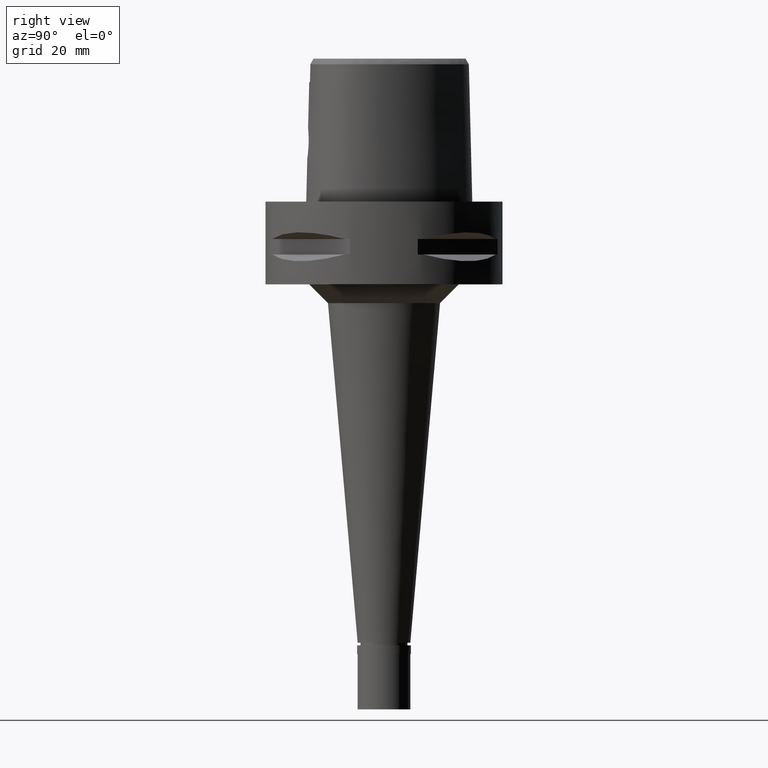
[diagram: clean part render]
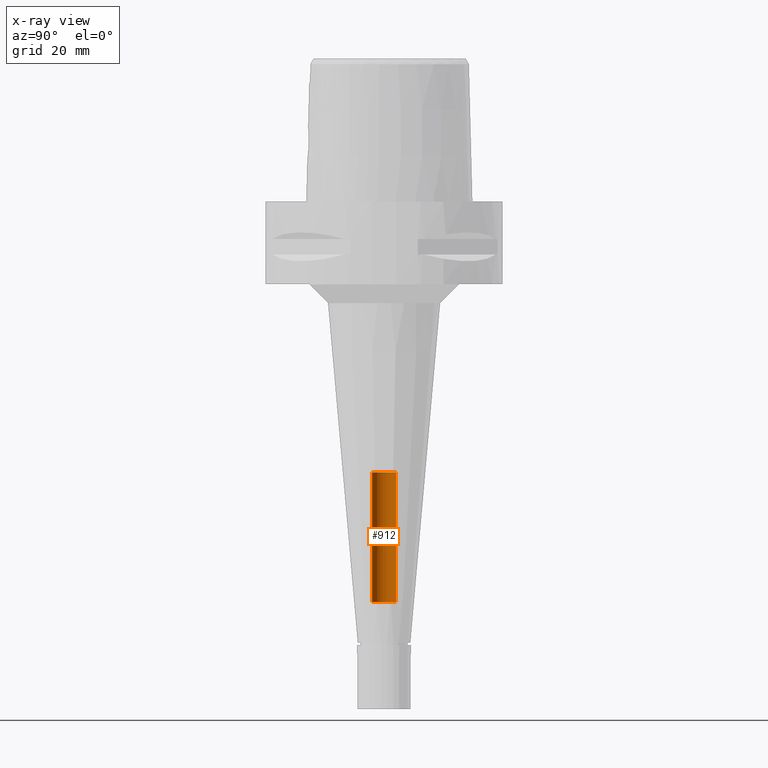
[diagram: x-ray — body ghosted, one internal face saturated and labeled with its STEP entity id]
A machine part, right view, then the same camera in x-ray: the body is ghosted and one INTERNAL B-rep face — a face not visible from any outside direction — is saturated and labeled: STEP entity #912.
In plain terms, the highlighted cylindrical surface (edge-blend (fillet) strip) has radius 3.2 mm, axis along (0, 0, -1).
Its self-contained STEP definition (entity closure, byte-faithful):
#241 = CIRCLE ( 'NONE', #1202, 3.200000000000000178 ) ;
#314 = LINE ( 'NONE', #3348, #1510 ) ;
#393 = DIRECTION ( 'NONE',  ( 0.0000000000000000000, 0.0000000000000000000, 1.000000000000000000 ) ) ;
#397 = AXIS2_PLACEMENT_3D ( 'NONE', #3450, #2316, #2388 ) ;
#446 = DIRECTION ( 'NONE',  ( 0.0000000000000000000, 0.0000000000000000000, -1.000000000000000000 ) ) ;
#760 = DIRECTION ( 'NONE',  ( 0.0000000000000000000, -1.000000000000000000, 0.0000000000000000000 ) ) ;
#863 = DIRECTION ( 'NONE',  ( 0.0000000000000000000, 0.0000000000000000000, 1.000000000000000000 ) ) ;
#886 = CARTESIAN_POINT ( 'NONE',  ( 0.0000000000000000000, 3.200000000000000178, -72.00000000000000000 ) ) ;
#912 = ADVANCED_FACE ( 'NONE', ( #4148 ), #1142, .F. ) ;
#1043 = ORIENTED_EDGE ( 'NONE', *, *, #2901, .T. ) ;
#1101 = VERTEX_POINT ( 'NONE', #3041 ) ;
#1142 = CYLINDRICAL_SURFACE ( 'NONE', #2727, 3.200000000000000178 ) ;
#1202 = AXIS2_PLACEMENT_3D ( 'NONE', #3844, #446, #3356 ) ;
#1257 = EDGE_CURVE ( 'NONE', #4006, #3796, #314, .T. ) ;
#1510 = VECTOR ( 'NONE', #393, 1000.000000000000000 ) ;
#1613 = ORIENTED_EDGE ( 'NONE', *, *, #1257, .T. ) ;
#1666 = EDGE_CURVE ( 'NONE', #3796, #2276, #3960, .T. ) ;
#1904 = DIRECTION ( 'NONE',  ( 0.0000000000000000000, 0.0000000000000000000, -1.000000000000000000 ) ) ;
#1955 = CARTESIAN_POINT ( 'NONE',  ( 0.0000000000000000000, -3.200000000000000178, -106.5000000000000000 ) ) ;
#2276 = VERTEX_POINT ( 'NONE', #2525 ) ;
#2316 = DIRECTION ( 'NONE',  ( 0.0000000000000000000, 0.0000000000000000000, 1.000000000000000000 ) ) ;
#2354 = CARTESIAN_POINT ( 'NONE',  ( 0.0000000000000000000, 1.304861164492000018E-14, 6.550000000000000711 ) ) ;
#2388 = DIRECTION ( 'NONE',  ( 0.0000000000000000000, 1.000000000000000000, 0.0000000000000000000 ) ) ;
#2525 = CARTESIAN_POINT ( 'NONE',  ( 0.0000000000000000000, -3.200000000000000178, -72.00000000000000000 ) ) ;
#2727 = AXIS2_PLACEMENT_3D ( 'NONE', #2354, #1904, #760 ) ;
#2843 = ORIENTED_EDGE ( 'NONE', *, *, #1666, .T. ) ;
#2901 = EDGE_CURVE ( 'NONE', #1101, #4006, #241, .T. ) ;
#3041 = CARTESIAN_POINT ( 'NONE',  ( 0.0000000000000000000, -3.200000000000000178, -106.5000000000000000 ) ) ;
#3227 = CARTESIAN_POINT ( 'NONE',  ( 0.0000000000000000000, 3.200000000000000178, -106.5000000000000000 ) ) ;
#3236 = EDGE_CURVE ( 'NONE', #1101, #2276, #3543, .T. ) ;
#3348 = CARTESIAN_POINT ( 'NONE',  ( 0.0000000000000000000, 3.200000000000000178, -106.5000000000000000 ) ) ;
#3356 = DIRECTION ( 'NONE',  ( 0.0000000000000000000, -1.000000000000000000, 0.0000000000000000000 ) ) ;
#3450 = CARTESIAN_POINT ( 'NONE',  ( 0.0000000000000000000, 1.304861164492000018E-14, -72.00000000000000000 ) ) ;
#3543 = LINE ( 'NONE', #1955, #3656 ) ;
#3609 = ORIENTED_EDGE ( 'NONE', *, *, #3236, .F. ) ;
#3656 = VECTOR ( 'NONE', #863, 1000.000000000000000 ) ;
#3796 = VERTEX_POINT ( 'NONE', #886 ) ;
#3844 = CARTESIAN_POINT ( 'NONE',  ( 0.0000000000000000000, 1.304861164492000018E-14, -106.5000000000000000 ) ) ;
#3960 = CIRCLE ( 'NONE', #397, 3.200000000000000178 ) ;
#4006 = VERTEX_POINT ( 'NONE', #3227 ) ;
#4148 = FACE_OUTER_BOUND ( 'NONE', #4879, .T. ) ;
#4879 = EDGE_LOOP ( 'NONE', ( #2843, #3609, #1043, #1613 ) ) ;